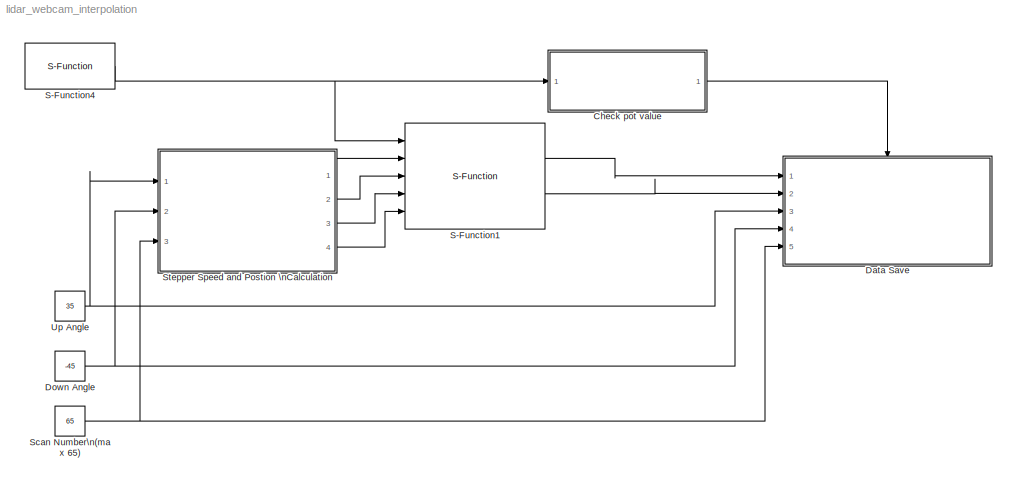
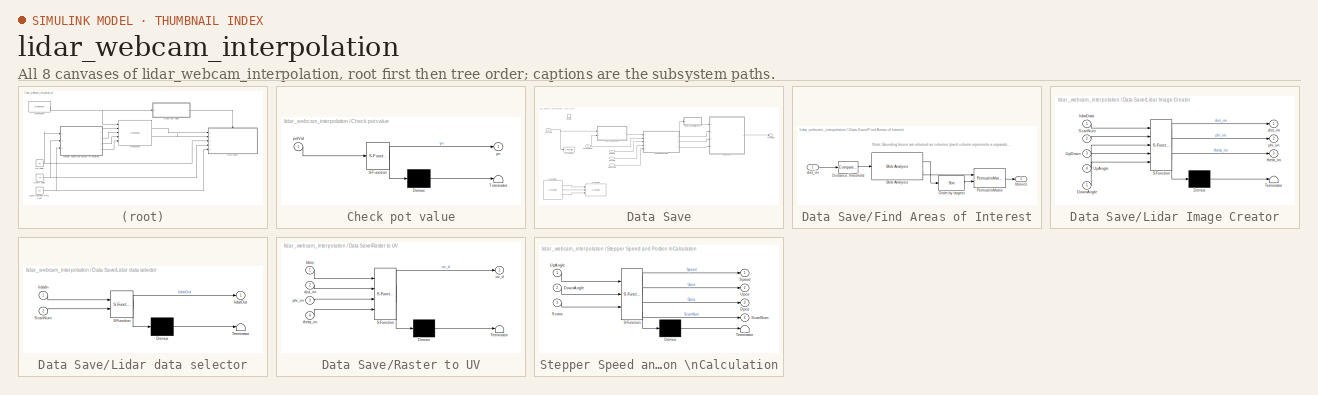
[diagram: thumbnail index - all 8 canvases of the model, root first then tree order]
MODEL lidar_webcam_interpolation
KIND model
BLOCK [SubSystem] Check pot value
  FunctionWithSeparateData = off
  MaskDescription = Embedded MATLAB block
  MaskDisplay = disp('check_pot_val');
  MaskHideContents = off
  MaskIconFrame = on
  MaskIconOpaque = off
  MaskIconRotate = none
  MaskIconUnits = autoscale
  MaskPortRotate = default
  MaskSelfModifiable = on
  MaskType = Stateflow
  MinAlgLoopOccurrences = off
  Opaque = off
  PermitHierarchicalResolution = ExplicitOnly
  Ports = [1, 1]
  PropExecContextOutsideSubsystem = off
  RTWSystemCode = Auto
  RequestExecContextInheritance = off
BLOCK [Demux] Check pot value/ Demux 
  Outputs = 1
  Ports = [1, 1]
BLOCK [S-Function] Check pot value/ SFunction 
  EnableBusSupport = on
  FunctionName = sf_sfun
  PortCounts = [1 2]
  Ports = [1, 2]
  Tag = Stateflow S-Function lidar_webcam_interpolation 2
BLOCK [Terminator] Check pot value/ Terminator 
BLOCK [Inport] Check pot value/potVal
  IconDisplay = Port number
  OutDataType = sfix(16)
  OutScaling = 2^0
BLOCK [Outport] Check pot value/yn
  IconDisplay = Port number
  OutDataType = sfix(16)
  OutScaling = 2^0
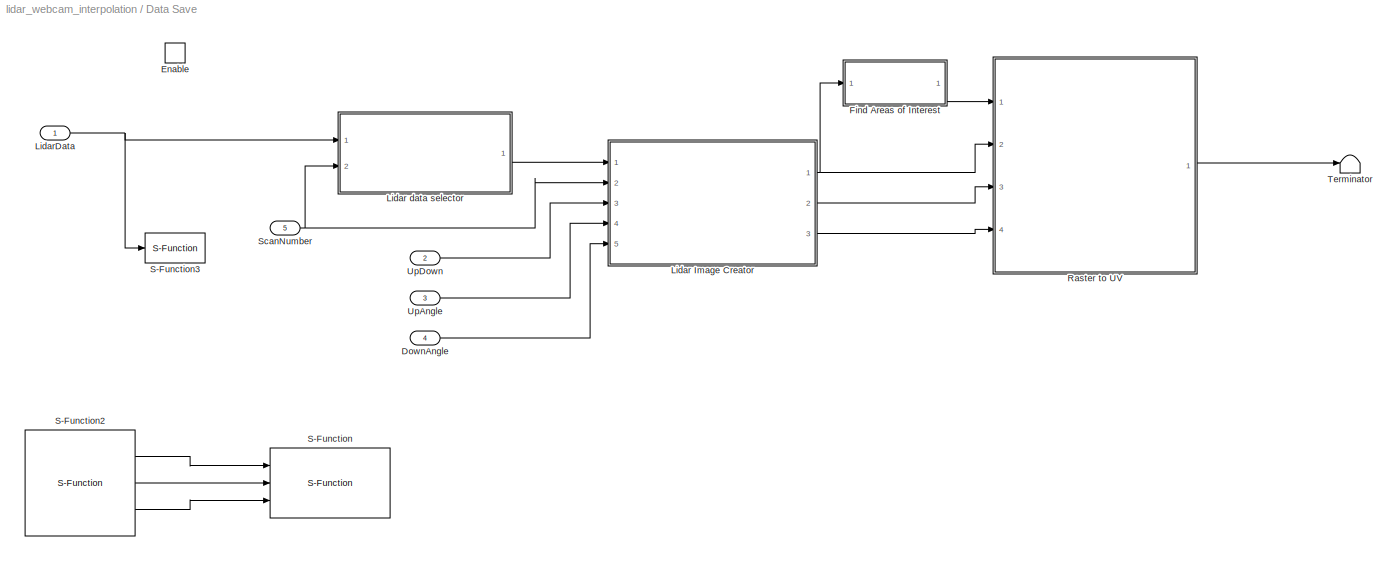
BLOCK [SubSystem] Data Save
  FunctionWithSeparateData = off
  MaskHideContents = off
  MinAlgLoopOccurrences = off
  Opaque = off
  Ports = [5, 0, 1]
  PropExecContextOutsideSubsystem = off
  RTWSystemCode = Auto
  RequestExecContextInheritance = off
  TreatAsAtomicUnit = on
BLOCK [Inport] Data Save/DownAngle
  IconDisplay = Port number
  OutDataType = fixdt(1, 16)
  OutScaling = 2^0
  Port = 4
BLOCK [EnablePort] Data Save/Enable
  Ports = []
BLOCK [SubSystem] Data Save/Find Areas of Interest
  FunctionWithSeparateData = off
  MaskHideContents = off
  MinAlgLoopOccurrences = off
  Opaque = off
  Ports = [1, 1]
  PropExecContextOutsideSubsystem = off
  RTWSystemCode = Auto
  RequestExecContextInheritance = off
BLOCK [Reference] Data Save/Find Areas of Interest/Blob Analysis  REF=vipstatistics/Blob Analysis
  DialogController = vipDDGCreate
  DialogControllerArgs = DataTag0
  LockScale = off
  Ports = [1, 2]
  SourceBlock = vipstatistics/Blob Analysis
  SourceType = Blob Analysis
  accumFracLength = 0
  accumMode = Binary point scaling
  accumWordLength = 32
  angle = off
  area = on
  bBox = on
  centroid = off
  conn = 8
  eccentricity = off
  equivDiameterSq = off
  excludeBorderBlob = off
  extent = off
  fillValues = -1
  firstCoeffFracLength = 14
  firstCoeffMode = Binary point scaling
  firstCoeffWordLength = 16
  isCount = off
  isFill = on
  isLabel = off
  isOutVarDim = off
  majorAxis = off
  maxArea = intmax('uint32')
  maxBlobs = 8
  memoryFracLength = 16
  memoryMode = Same as product output
  memoryWordLength = 32
  minArea = 0
  minorAxis = off
  outDT = double
  outputFracLength = 16
  outputMode = Binary point scaling
  outputWordLength = 32
  overflowMode = off
  perimeter = off
  prodOutputFracLength = 16
  prodOutputMode = Binary point scaling
  prodOutputWordLength = 32
  roundingMode = Floor
  secondCoeffFracLength = 16
  secondCoeffMode = Binary point scaling
  secondCoeffWordLength = 32
  useMaxArea = off
  useMinArea = off
  warnIfNumBlobsExceeded = on
BLOCK [Reference] Data Save/Find Areas of Interest/Distance Threshold  REF=simulink/Logic and Bit\nOperations/Compare\nTo Constant
  FunctionWithSeparateData = off
  LogicOutDataTypeMode = boolean
  Ports = [1, 1]
  RTWMemSecDataConstants = Inherit from model
  RTWMemSecDataInternal = Inherit from model
  RTWMemSecDataParameters = Inherit from model
  RTWMemSecFuncExecute = Inherit from model
  RTWMemSecFuncInitTerm = Inherit from model
  ShowPortLabels = FromPortIcon
  SourceBlock = simulink/Logic and Bit\nOperations/Compare\nTo Constant
  SourceType = Compare To Constant
  SystemSampleTime = -1
  ZeroCross = off
  const = 15000
  relop = <=
BLOCK [Reference] Data Save/Find Areas of Interest/Order by largest  REF=dspstat3/Sort
  DialogController = dspDDGCreate
  DialogControllerArgs = DataTag1
  LockScale = off
  Ports = [1, 1]
  SourceBlock = dspstat3/Sort
  SourceType = Sort
  accumFracLength = 30
  accumMode = Same as product output
  accumWordLength = 32
  additionalParams = off
  allowOverrides = on
  dir = Descending
  otype = Index
  overflowMode = off
  prodOutputFracLength = 30
  prodOutputMode = Same as input
  prodOutputWordLength = 32
  roundingMode = Floor
  sortAlg = Quick sort
BLOCK [Reference] Data Save/Find Areas of Interest/Permute\nMatrix  REF=dspmtrx3/Permute\nMatrix
  Ports = [2, 1]
  SourceBlock = dspmtrx3/Permute\nMatrix
  SourceType = Permute Matrix
  ZeroOneIdxMode = One-based
  checkDims = off
  errmode = Clip index
  mode = Columns
BLOCK [Outport] Data Save/Find Areas of Interest/bboxes
  IconDisplay = Port number
  OutDataType = fixdt(1, 16)
  OutScaling = 2^0
BLOCK [Inport] Data Save/Find Areas of Interest/dist_im
  IconDisplay = Port number
  OutDataType = fixdt(1, 16)
  OutScaling = 2^0
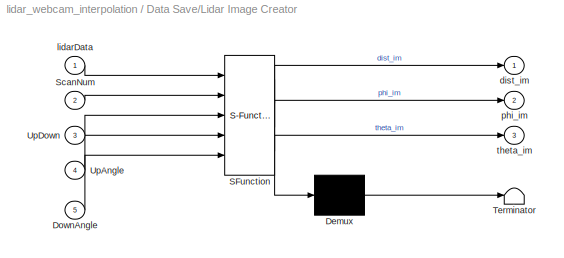
BLOCK [SubSystem] Data Save/Lidar Image Creator
  FunctionWithSeparateData = off
  MaskDescription = Embedded MATLAB block
  MaskDisplay = disp('image_creator');
  MaskHideContents = off
  MaskIconFrame = on
  MaskIconOpaque = off
  MaskIconRotate = none
  MaskIconUnits = autoscale
  MaskPortRotate = default
  MaskSelfModifiable = on
  MaskType = Stateflow
  MinAlgLoopOccurrences = off
  Opaque = off
  PermitHierarchicalResolution = ExplicitOnly
  Ports = [5, 3]
  PropExecContextOutsideSubsystem = off
  RTWSystemCode = Auto
  RequestExecContextInheritance = off
BLOCK [Demux] Data Save/Lidar Image Creator/ Demux 
  Outputs = 1
  Ports = [1, 1]
BLOCK [S-Function] Data Save/Lidar Image Creator/ SFunction 
  EnableBusSupport = on
  FunctionName = sf_sfun
  PortCounts = [5 4]
  Ports = [5, 4]
  Tag = Stateflow S-Function lidar_webcam_interpolation 4
BLOCK [Terminator] Data Save/Lidar Image Creator/ Terminator 
BLOCK [Inport] Data Save/Lidar Image Creator/DownAngle
  IconDisplay = Port number
  Port = 5
BLOCK [Inport] Data Save/Lidar Image Creator/ScanNum
  IconDisplay = Port number
  Port = 2
BLOCK [Inport] Data Save/Lidar Image Creator/UpAngle
  IconDisplay = Port number
  Port = 4
BLOCK [Inport] Data Save/Lidar Image Creator/UpDown
  IconDisplay = Port number
  Port = 3
BLOCK [Outport] Data Save/Lidar Image Creator/dist_im
  IconDisplay = Port number
  OutDataType = sfix(16)
  OutScaling = 2^0
BLOCK [Inport] Data Save/Lidar Image Creator/lidarData
  IconDisplay = Port number
  OutDataType = sfix(16)
  OutScaling = 2^0
BLOCK [Outport] Data Save/Lidar Image Creator/phi_im
  IconDisplay = Port number
  Port = 2
BLOCK [Outport] Data Save/Lidar Image Creator/theta_im
  IconDisplay = Port number
  Port = 3
BLOCK [SubSystem] Data Save/Lidar data selector
  FunctionWithSeparateData = off
  MaskDescription = Embedded MATLAB block
  MaskDisplay = disp('data_selector');
  MaskHideContents = off
  MaskIconFrame = on
  MaskIconOpaque = off
  MaskIconRotate = none
  MaskIconUnits = autoscale
  MaskPortRotate = default
  MaskSelfModifiable = on
  MaskType = Stateflow
  MinAlgLoopOccurrences = off
  Opaque = off
  PermitHierarchicalResolution = ExplicitOnly
  Ports = [2, 1]
  PropExecContextOutsideSubsystem = off
  RTWSystemCode = Auto
  RequestExecContextInheritance = off
BLOCK [Demux] Data Save/Lidar data selector/ Demux 
  Outputs = 1
  Ports = [1, 1]
BLOCK [S-Function] Data Save/Lidar data selector/ SFunction 
  EnableBusSupport = on
  FunctionName = sf_sfun
  PortCounts = [2 2]
  Ports = [2, 2]
  Tag = Stateflow S-Function lidar_webcam_interpolation 3
BLOCK [Terminator] Data Save/Lidar data selector/ Terminator 
BLOCK [Inport] Data Save/Lidar data selector/ScanNum
  IconDisplay = Port number
  Port = 2
BLOCK [Inport] Data Save/Lidar data selector/lidarIn
  IconDisplay = Port number
  OutDataType = sfix(16)
  OutScaling = 2^0
BLOCK [Outport] Data Save/Lidar data selector/lidarOut
  IconDisplay = Port number
  OutDataType = sfix(16)
  OutScaling = 2^0
BLOCK [Inport] Data Save/LidarData
  IconDisplay = Port number
  OutDataType = fixdt(1, 16)
  OutScaling = 2^0
BLOCK [SubSystem] Data Save/Raster to UV
  FunctionWithSeparateData = off
  MaskDescription = Embedded MATLAB block
  MaskDisplay = disp('fcn');
  MaskHideContents = off
  MaskIconFrame = on
  MaskIconOpaque = off
  MaskIconRotate = none
  MaskIconUnits = autoscale
  MaskPortRotate = default
  MaskSelfModifiable = on
  MaskType = Stateflow
  MinAlgLoopOccurrences = off
  Opaque = off
  PermitHierarchicalResolution = ExplicitOnly
  Ports = [4, 1]
  PropExecContextOutsideSubsystem = off
  RTWSystemCode = Auto
  RequestExecContextInheritance = off
BLOCK [Demux] Data Save/Raster to UV/ Demux 
  Outputs = 1
  Ports = [1, 1]
BLOCK [S-Function] Data Save/Raster to UV/ SFunction 
  EnableBusSupport = on
  FunctionName = sf_sfun
  PortCounts = [4 2]
  Ports = [4, 2]
  Tag = Stateflow S-Function lidar_webcam_interpolation 5
BLOCK [Terminator] Data Save/Raster to UV/ Terminator 
BLOCK [Inport] Data Save/Raster to UV/bbox
  IconDisplay = Port number
  OutDataType = sfix(16)
  OutScaling = 2^0
BLOCK [Inport] Data Save/Raster to UV/dist_im
  IconDisplay = Port number
  Port = 2
BLOCK [Inport] Data Save/Raster to UV/phi_im
  IconDisplay = Port number
  Port = 3
BLOCK [Inport] Data Save/Raster to UV/theta_im
  IconDisplay = Port number
  Port = 4
BLOCK [Outport] Data Save/Raster to UV/uv_d
  IconDisplay = Port number
  OutDataType = sfix(16)
  OutScaling = 2^0
BLOCK [S-Function] Data Save/S-Function
  EnableBusSupport = off
  FunctionName = videoExport_v2
  Ports = [3]
BLOCK [S-Function] Data Save/S-Function2
  EnableBusSupport = off
  FunctionName = WebcamTest_v2
  Ports = [0, 3]
BLOCK [S-Function] Data Save/S-Function3
  EnableBusSupport = off
  FunctionName = lidarExport
  Ports = [1]
BLOCK [Inport] Data Save/ScanNumber
  IconDisplay = Port number
  OutDataType = fixdt(1, 16)
  OutScaling = 2^0
  Port = 5
BLOCK [Terminator] Data Save/Terminator
BLOCK [Inport] Data Save/UpAngle
  IconDisplay = Port number
  OutDataType = fixdt(1, 16)
  OutScaling = 2^0
  Port = 3
BLOCK [Inport] Data Save/UpDown
  IconDisplay = Port number
  OutDataType = fixdt(1, 16)
  OutScaling = 2^0
  Port = 2
BLOCK [Constant] Down Angle
  OutDataType = fixdt(1, 16)
  OutScaling = 2^0
  Value = -45
BLOCK [S-Function] S-Function1
  EnableBusSupport = off
  FunctionName = lidar_zero_test_v4
  Ports = [5, 2]
BLOCK [S-Function] S-Function4
  EnableBusSupport = off
  FunctionName = pot_readerV2
  Ports = [0, 1]
BLOCK [Constant] Scan Number\n(max 65)
  OutDataType = fixdt(1, 16)
  OutScaling = 2^0
  Value = 65
BLOCK [SubSystem] Stepper Speed and Postion \nCalculation
  FunctionWithSeparateData = off
  MaskDescription = Embedded MATLAB block
  MaskDisplay = disp('stepper_calc');
  MaskHideContents = off
  MaskIconFrame = on
  MaskIconOpaque = off
  MaskIconRotate = none
  MaskIconUnits = autoscale
  MaskPortRotate = default
  MaskSelfModifiable = on
  MaskType = Stateflow
  MinAlgLoopOccurrences = off
  Opaque = off
  PermitHierarchicalResolution = ExplicitOnly
  Ports = [3, 4]
  PropExecContextOutsideSubsystem = off
  RTWSystemCode = Auto
  RequestExecContextInheritance = off
BLOCK [Demux] Stepper Speed and Postion \nCalculation/ Demux 
  Outputs = 1
  Ports = [1, 1]
BLOCK [S-Function] Stepper Speed and Postion \nCalculation/ SFunction 
  EnableBusSupport = on
  FunctionName = sf_sfun
  PortCounts = [3 5]
  Ports = [3, 5]
  Tag = Stateflow S-Function lidar_webcam_interpolation 1
BLOCK [Terminator] Stepper Speed and Postion \nCalculation/ Terminator 
BLOCK [Inport] Stepper Speed and Postion \nCalculation/DownAngle
  IconDisplay = Port number
  Port = 2
BLOCK [Outport] Stepper Speed and Postion \nCalculation/Dpos
  IconDisplay = Port number
  Port = 3
BLOCK [Outport] Stepper Speed and Postion \nCalculation/ScanNum
  IconDisplay = Port number
  Port = 4
BLOCK [Inport] Stepper Speed and Postion \nCalculation/Scans
  IconDisplay = Port number
  Port = 3
BLOCK [Outport] Stepper Speed and Postion \nCalculation/Speed
  IconDisplay = Port number
  OutDataType = sfix(16)
  OutScaling = 2^0
BLOCK [Inport] Stepper Speed and Postion \nCalculation/UpAngle
  IconDisplay = Port number
  OutDataType = sfix(16)
  OutScaling = 2^0
BLOCK [Outport] Stepper Speed and Postion \nCalculation/Upos
  IconDisplay = Port number
  Port = 2
BLOCK [Constant] Up Angle
  OutDataType = fixdt(1, 16)
  OutScaling = 2^0
  Value = 35
ANNOTATION Data Save/Find Areas of Interest: Note: Bounding boxes are returned as columns (each column represents a separate blob)
LINE Check pot value/ Demux :1 -> Check pot value/ Terminator :1
LINE Check pot value/ SFunction :1 -> Check pot value/ Demux :1
LINE Check pot value/ SFunction :2 -> Check pot value/yn:1
LINE Check pot value/potVal:1 -> Check pot value/ SFunction :1
LINE Check pot value:1 -> Data Save:enable
LINE Data Save/DownAngle:1 -> Data Save/Lidar Image Creator:5
LINE Data Save/Find Areas of Interest/Blob Analysis:1 -> Data Save/Find Areas of Interest/Order by largest:1
LINE Data Save/Find Areas of Interest/Blob Analysis:2 -> Data Save/Find Areas of Interest/Permute\nMatrix:1
LINE Data Save/Find Areas of Interest/Distance Threshold:1 -> Data Save/Find Areas of Interest/Blob Analysis:1
LINE Data Save/Find Areas of Interest/Order by largest:1 -> Data Save/Find Areas of Interest/Permute\nMatrix:2
LINE Data Save/Find Areas of Interest/Permute\nMatrix:1 -> Data Save/Find Areas of Interest/bboxes:1
LINE Data Save/Find Areas of Interest/dist_im:1 -> Data Save/Find Areas of Interest/Distance Threshold:1
LINE Data Save/Find Areas of Interest:1 -> Data Save/Raster to UV:1
LINE Data Save/Lidar Image Creator/ Demux :1 -> Data Save/Lidar Image Creator/ Terminator :1
LINE Data Save/Lidar Image Creator/ SFunction :1 -> Data Save/Lidar Image Creator/ Demux :1
LINE Data Save/Lidar Image Creator/ SFunction :2 -> Data Save/Lidar Image Creator/dist_im:1
LINE Data Save/Lidar Image Creator/ SFunction :3 -> Data Save/Lidar Image Creator/phi_im:1
LINE Data Save/Lidar Image Creator/ SFunction :4 -> Data Save/Lidar Image Creator/theta_im:1
LINE Data Save/Lidar Image Creator/DownAngle:1 -> Data Save/Lidar Image Creator/ SFunction :5
LINE Data Save/Lidar Image Creator/ScanNum:1 -> Data Save/Lidar Image Creator/ SFunction :2
LINE Data Save/Lidar Image Creator/UpAngle:1 -> Data Save/Lidar Image Creator/ SFunction :4
LINE Data Save/Lidar Image Creator/UpDown:1 -> Data Save/Lidar Image Creator/ SFunction :3
LINE Data Save/Lidar Image Creator/lidarData:1 -> Data Save/Lidar Image Creator/ SFunction :1
NET Data Save/Lidar Image Creator:1 -> Data Save/Find Areas of Interest:1, Data Save/Raster to UV:2
LINE Data Save/Lidar Image Creator:2 -> Data Save/Raster to UV:3
LINE Data Save/Lidar Image Creator:3 -> Data Save/Raster to UV:4
LINE Data Save/Lidar data selector/ Demux :1 -> Data Save/Lidar data selector/ Terminator :1
LINE Data Save/Lidar data selector/ SFunction :1 -> Data Save/Lidar data selector/ Demux :1
LINE Data Save/Lidar data selector/ SFunction :2 -> Data Save/Lidar data selector/lidarOut:1
LINE Data Save/Lidar data selector/ScanNum:1 -> Data Save/Lidar data selector/ SFunction :2
LINE Data Save/Lidar data selector/lidarIn:1 -> Data Save/Lidar data selector/ SFunction :1
LINE Data Save/Lidar data selector:1 -> Data Save/Lidar Image Creator:1
NET Data Save/LidarData:1 -> Data Save/Lidar data selector:1, Data Save/S-Function3:1
LINE Data Save/Raster to UV/ Demux :1 -> Data Save/Raster to UV/ Terminator :1
LINE Data Save/Raster to UV/ SFunction :1 -> Data Save/Raster to UV/ Demux :1
LINE Data Save/Raster to UV/ SFunction :2 -> Data Save/Raster to UV/uv_d:1
LINE Data Save/Raster to UV/bbox:1 -> Data Save/Raster to UV/ SFunction :1
LINE Data Save/Raster to UV/dist_im:1 -> Data Save/Raster to UV/ SFunction :2
LINE Data Save/Raster to UV/phi_im:1 -> Data Save/Raster to UV/ SFunction :3
LINE Data Save/Raster to UV/theta_im:1 -> Data Save/Raster to UV/ SFunction :4
LINE Data Save/Raster to UV:1 -> Data Save/Terminator:1
LINE Data Save/S-Function2:1 -> Data Save/S-Function:1
LINE Data Save/S-Function2:2 -> Data Save/S-Function:2
LINE Data Save/S-Function2:3 -> Data Save/S-Function:3
NET Data Save/ScanNumber:1 -> Data Save/Lidar Image Creator:2, Data Save/Lidar data selector:2
LINE Data Save/UpAngle:1 -> Data Save/Lidar Image Creator:4
LINE Data Save/UpDown:1 -> Data Save/Lidar Image Creator:3
NET Down Angle:1 -> Data Save:4, Stepper Speed and Postion \nCalculation:2
LINE S-Function1:1 -> Data Save:1
LINE S-Function1:2 -> Data Save:2
NET S-Function4:1 -> Check pot value:1, S-Function1:1
NET Scan Number\n(max 65):1 -> Data Save:5, Stepper Speed and Postion \nCalculation:3
LINE Stepper Speed and Postion \nCalculation/ Demux :1 -> Stepper Speed and Postion \nCalculation/ Terminator :1
LINE Stepper Speed and Postion \nCalculation/ SFunction :1 -> Stepper Speed and Postion \nCalculation/ Demux :1
LINE Stepper Speed and Postion \nCalculation/ SFunction :2 -> Stepper Speed and Postion \nCalculation/Speed:1
LINE Stepper Speed and Postion \nCalculation/ SFunction :3 -> Stepper Speed and Postion \nCalculation/Upos:1
LINE Stepper Speed and Postion \nCalculation/ SFunction :4 -> Stepper Speed and Postion \nCalculation/Dpos:1
LINE Stepper Speed and Postion \nCalculation/ SFunction :5 -> Stepper Speed and Postion \nCalculation/ScanNum:1
LINE Stepper Speed and Postion \nCalculation/DownAngle:1 -> Stepper Speed and Postion \nCalculation/ SFunction :2
LINE Stepper Speed and Postion \nCalculation/Scans:1 -> Stepper Speed and Postion \nCalculation/ SFunction :3
LINE Stepper Speed and Postion \nCalculation/UpAngle:1 -> Stepper Speed and Postion \nCalculation/ SFunction :1
LINE Stepper Speed and Postion \nCalculation:1 -> S-Function1:2
LINE Stepper Speed and Postion \nCalculation:2 -> S-Function1:3
LINE Stepper Speed and Postion \nCalculation:3 -> S-Function1:4
LINE Stepper Speed and Postion \nCalculation:4 -> S-Function1:5
NET Up Angle:1 -> Data Save:3, Stepper Speed and Postion \nCalculation:1
note: NET lines group one-source signal fan-out (src -> all destinations, sorted); 1:1 wires keep LINE
CHART Stepper Speed and Postion \nCalculation states=1 transitions=1
  STATE_LABEL 'eML_blk_kernel()'
CHART Check pot value states=1 transitions=1
  STATE_LABEL 'eML_blk_kernel()'
CHART Data Save/Lidar data selector states=1 transitions=1
  STATE_LABEL 'eML_blk_kernel()'
CHART Data Save/Lidar Image Creator states=1 transitions=1
  STATE_LABEL 'eML_blk_kernel()'
CHART Data Save/Raster to UV states=1 transitions=1
  STATE_LABEL 'eML_blk_kernel()'
